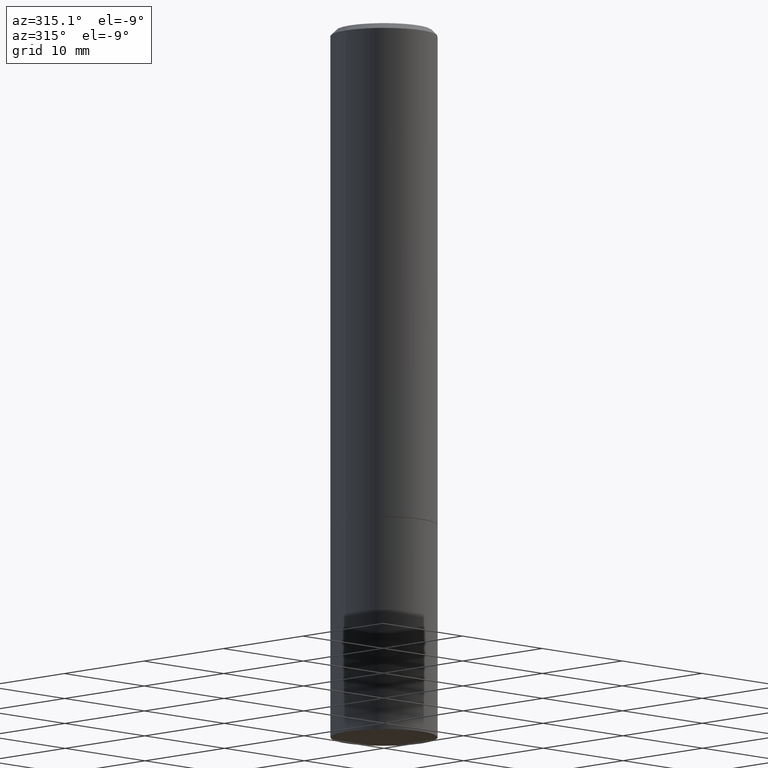
[diagram: clean part render]
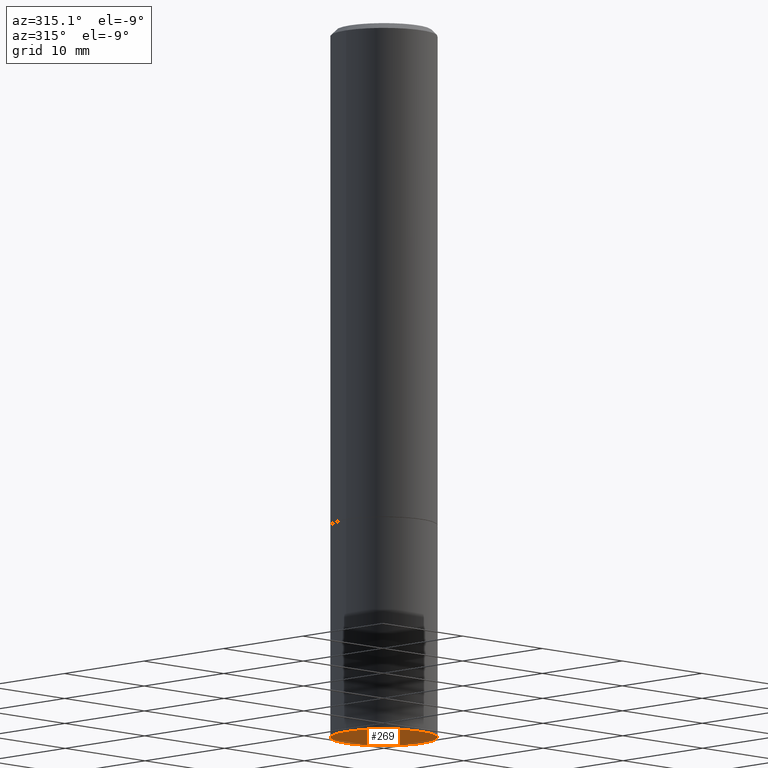
[diagram: same view with one face highlighted and labeled with its STEP entity id]
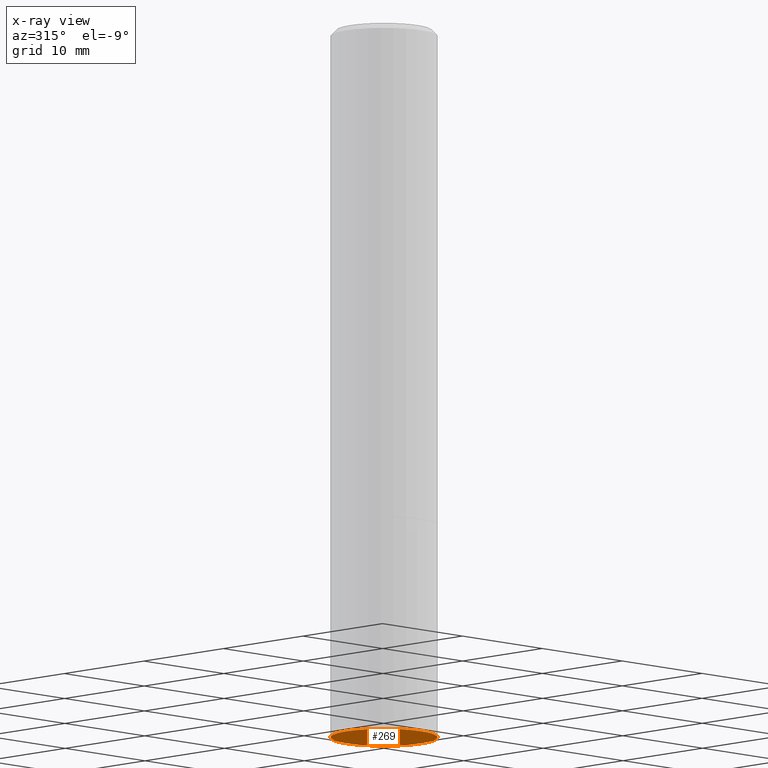
[diagram: x-ray of the same camera — body ghosted, the highlighted face saturated]
A machine part, auxiliary view. The second image highlights one B-rep face of the part: STEP entity #269.
The next image is the same camera in x-ray: the body ghosted, the highlighted face saturated — about 0% of this face is hidden behind the body in this view.
In plain terms, the highlighted planar face has unit normal (0, -0, -1).
Its self-contained STEP definition (entity closure, byte-faithful):
#10 = DIRECTION ( 'NONE',  ( -2.445468806185136597E-29, 3.491481338843145583E-15, 1.000000000000000000 ) ) ;
#26 = CARTESIAN_POINT ( 'NONE',  ( 0.1875000000000000278, -1.003800884917403995E-14, -2.500000000000000000 ) ) ;
#30 = VERTEX_POINT ( 'NONE', #139 ) ;
#42 = CIRCLE ( 'NONE', #94, 0.1875000000000000278 ) ;
#44 = ORIENTED_EDGE ( 'NONE', *, *, #320, .F. ) ;
#72 = EDGE_CURVE ( 'NONE', #30, #108, #277, .T. ) ;
#88 = EDGE_LOOP ( 'NONE', ( #44, #310 ) ) ;
#90 = CARTESIAN_POINT ( 'NONE',  ( 1.309305502066236145E-15, 0.1874999999999912847, -2.500000000000000444 ) ) ;
#94 = AXIS2_PLACEMENT_3D ( 'NONE', #157, #218, #279 ) ;
#108 = VERTEX_POINT ( 'NONE', #26 ) ;
#109 = AXIS2_PLACEMENT_3D ( 'NONE', #306, #10, #115 ) ;
#115 = DIRECTION ( 'NONE',  ( 1.000000000000000000, -6.982962677686266711E-15, 0.000000000000000000 ) ) ;
#139 = CARTESIAN_POINT ( 'NONE',  ( -0.1875000000000000278, -6.087130215491496564E-15, -2.500000000000000000 ) ) ;
#157 = CARTESIAN_POINT ( 'NONE',  ( 6.113672015462842613E-29, -8.728703347107864943E-15, -2.500000000000000000 ) ) ;
#218 = DIRECTION ( 'NONE',  ( -2.445468806185136597E-29, 3.491481338843145583E-15, 1.000000000000000000 ) ) ;
#269 = ADVANCED_FACE ( 'NONE', ( #352 ), #329, .T. ) ;
#277 = CIRCLE ( 'NONE', #109, 0.1875000000000000278 ) ;
#279 = DIRECTION ( 'NONE',  ( 1.000000000000000000, -6.982962677686266711E-15, 0.000000000000000000 ) ) ;
#305 = AXIS2_PLACEMENT_3D ( 'NONE', #90, #321, #328 ) ;
#306 = CARTESIAN_POINT ( 'NONE',  ( 6.113672015462842613E-29, -8.728703347107864943E-15, -2.500000000000000000 ) ) ;
#310 = ORIENTED_EDGE ( 'NONE', *, *, #72, .F. ) ;
#320 = EDGE_CURVE ( 'NONE', #108, #30, #42, .T. ) ;
#321 = DIRECTION ( 'NONE',  ( 2.438088387897960049E-29, -3.491481338843145188E-15, -1.000000000000000000 ) ) ;
#328 = DIRECTION ( 'NONE',  ( -1.000000000000000000, 6.982962677686265922E-15, -4.876176775795935793E-29 ) ) ;
#329 = PLANE ( 'NONE',  #305 ) ;
#352 = FACE_OUTER_BOUND ( 'NONE', #88, .T. ) ;